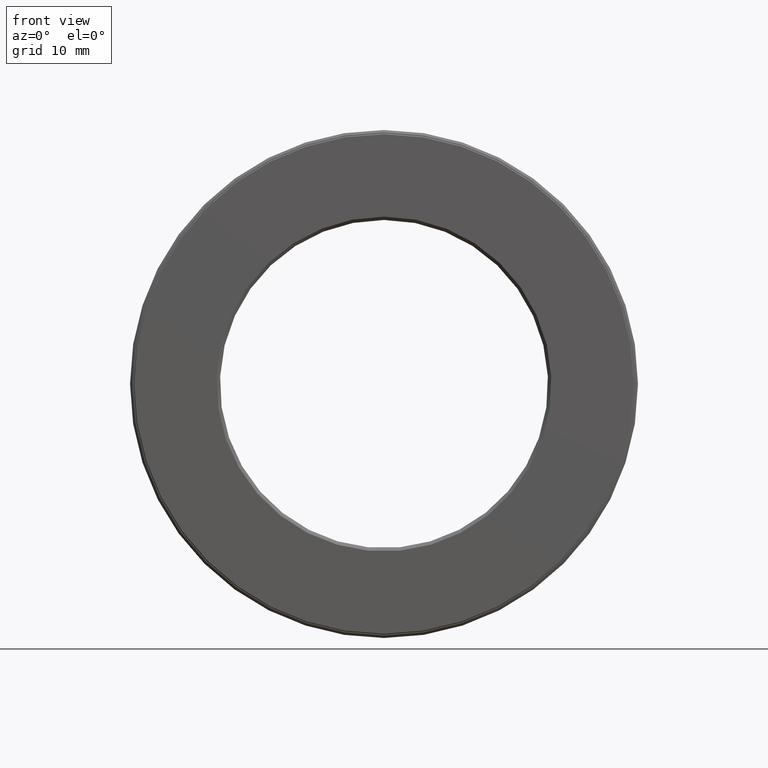
[diagram: clean part render]
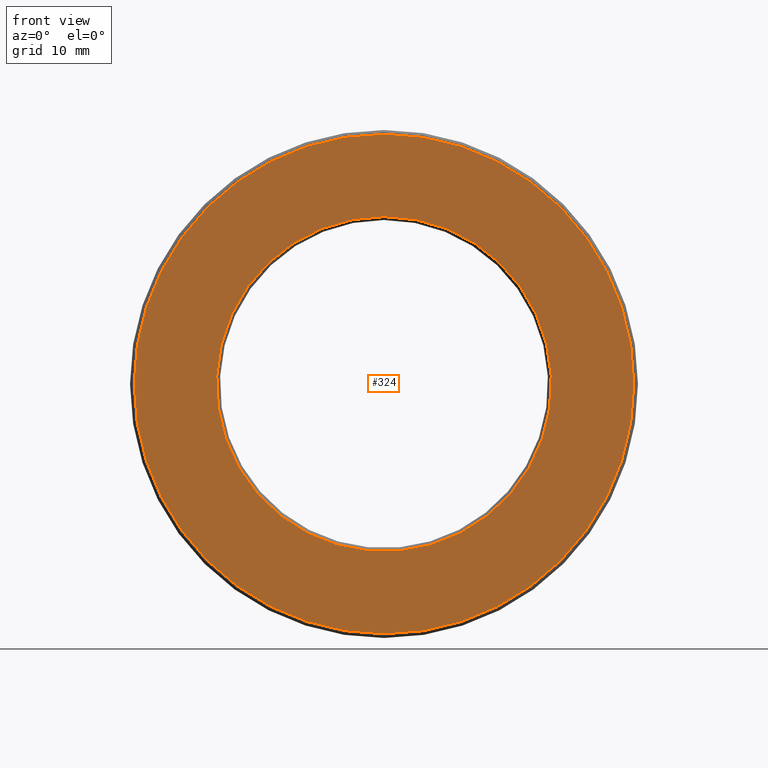
[diagram: same view with one face highlighted and labeled with its STEP entity id]
A machine part, front view. The second image highlights one B-rep face of the part: STEP entity #324.
In plain terms, the highlighted planar face has unit normal (-0, 1, 0).
Its self-contained STEP definition (entity closure, byte-faithful):
#13 = EDGE_CURVE ( 'NONE', #537, #537, #278, .T. ) ;
#19 = EDGE_LOOP ( 'NONE', ( #397 ) ) ;
#47 = ORIENTED_EDGE ( 'NONE', *, *, #13, .T. ) ;
#70 = VERTEX_POINT ( 'NONE', #527 ) ;
#73 = DIRECTION ( 'NONE',  ( -0.0000000000000000000, 1.000000000000000000, 0.0000000000000000000 ) ) ;
#167 = DIRECTION ( 'NONE',  ( -0.0000000000000000000, 1.000000000000000000, -0.0000000000000000000 ) ) ;
#213 = DIRECTION ( 'NONE',  ( 0.0000000000000000000, 0.0000000000000000000, 1.000000000000000000 ) ) ;
#259 = CARTESIAN_POINT ( 'NONE',  ( -2.823461359840090800E-032, -4.108443271721645900E-017, 0.0000000000000000000 ) ) ;
#262 = FACE_OUTER_BOUND ( 'NONE', #19, .T. ) ;
#278 = CIRCLE ( 'NONE', #534, 0.9887500000000003500 ) ;
#285 = EDGE_CURVE ( 'NONE', #70, #70, #359, .T. ) ;
#295 = CARTESIAN_POINT ( 'NONE',  ( 0.0000000000000000000, 0.0000000000000000000, 0.9887500000000003500 ) ) ;
#311 = DIRECTION ( 'NONE',  ( 0.0000000000000000000, 0.0000000000000000000, 1.000000000000000000 ) ) ;
#324 = ADVANCED_FACE ( 'NONE', ( #262, #361 ), #543, .F. ) ;
#359 = CIRCLE ( 'NONE', #568, 1.474999999999999600 ) ;
#361 = FACE_BOUND ( 'NONE', #592, .T. ) ;
#362 = DIRECTION ( 'NONE',  ( -0.0000000000000000000, 1.000000000000000000, -0.0000000000000000000 ) ) ;
#363 = DIRECTION ( 'NONE',  ( 0.0000000000000000000, 0.0000000000000000000, 1.000000000000000000 ) ) ;
#365 = CARTESIAN_POINT ( 'NONE',  ( 0.0000000000000000000, 0.0000000000000000000, 0.0000000000000000000 ) ) ;
#397 = ORIENTED_EDGE ( 'NONE', *, *, #285, .F. ) ;
#403 = CARTESIAN_POINT ( 'NONE',  ( 0.0000000000000000000, -8.216886543443291800E-017, 0.0000000000000000000 ) ) ;
#506 = AXIS2_PLACEMENT_3D ( 'NONE', #259, #73, #213 ) ;
#527 = CARTESIAN_POINT ( 'NONE',  ( 0.0000000000000000000, -8.216886543443291800E-017, 1.474999999999999600 ) ) ;
#534 = AXIS2_PLACEMENT_3D ( 'NONE', #365, #167, #311 ) ;
#537 = VERTEX_POINT ( 'NONE', #295 ) ;
#543 = PLANE ( 'NONE',  #506 ) ;
#568 = AXIS2_PLACEMENT_3D ( 'NONE', #403, #362, #363 ) ;
#592 = EDGE_LOOP ( 'NONE', ( #47 ) ) ;